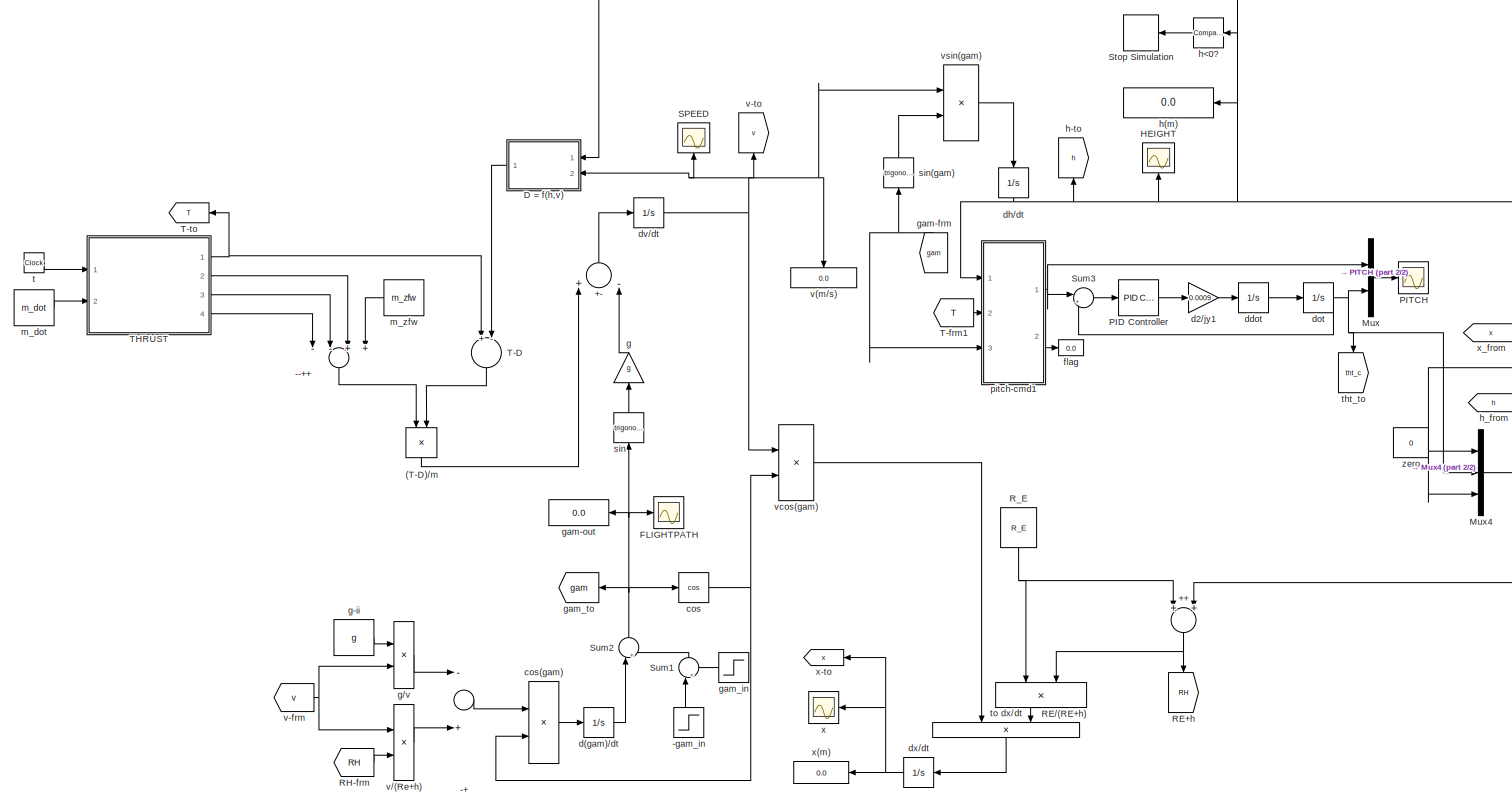
[diagram: root canvas - part 1/2, most of the canvas]
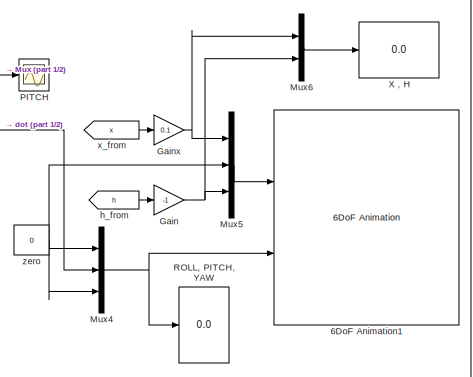
[diagram: root canvas - part 2/2, middle right region]
MODEL slx_6d2a2a8448fb
KIND model
BLOCK [Product] (T-D)//m
  InputSameDT = off
  Inputs = /*
  OutDataTypeStr = Inherit: Inherit via internal rule
  Ports = [2, 1]
  RndMeth = Floor
  SaturateOnIntegerOverflow = off
BLOCK [Sum] ++
  InputSameDT = off
  OutDataTypeStr = Inherit: Inherit via internal rule
  Ports = [2, 1]
  SaturateOnIntegerOverflow = off
BLOCK [Sum] +-
  InputSameDT = off
  Inputs = +-
  OutDataTypeStr = Inherit: Inherit via internal rule
  Ports = [2, 1]
  SaturateOnIntegerOverflow = off
BLOCK [Sum] -+
  InputSameDT = off
  Inputs = -+
  OutDataTypeStr = Inherit: Inherit via internal rule
  Ports = [2, 1]
  SaturateOnIntegerOverflow = off
BLOCK [Sum] --++
  InputSameDT = off
  Inputs = --++
  OutDataTypeStr = Inherit: Inherit via internal rule
  Ports = [4, 1]
  SaturateOnIntegerOverflow = off
BLOCK [Step] -gam_in
  After = -gam_in
  Before = -gam_in
  SampleTime = 0
  Time = t_turn+1
BLOCK [Reference] 6DoF Animation1  REF=aerolibanim/6DoF Animation
  Ports = [2]
  SourceBlock = aerolibanim/6DoF Animation
  SourceType = 6DoF_Animation
  u1 = [-100 10000 -10000 10000 0 10000]
  u2 = 0.3
  u3 = 2000
  u4 = [100000 100000 -100000]
  u5 = Fixed position
  u6 = [-20000 50000 -3500]
  u7 = 10
  u8 = on
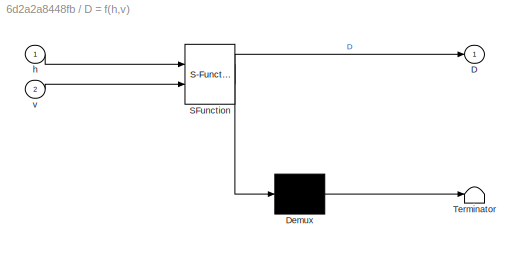
BLOCK [SubSystem] D = f(h,v)
  ErrorFcn = Stateflow.Translate.translate
  FunctionWithSeparateData = off
  MaskHideContents = off
  MinAlgLoopOccurrences = off
  Opaque = off
  PermitHierarchicalResolution = ExplicitOnly
  Ports = [2, 1]
  PropExecContextOutsideSubsystem = off
  RTWSystemCode = Auto
  RequestExecContextInheritance = off
  SFBlockType = MATLAB Function
  TreatAsAtomicUnit = on
BLOCK [Demux] D = f(h,v)/ Demux 
  Outputs = 1
  Ports = [1, 1]
BLOCK [S-Function] D = f(h,v)/ SFunction 
  EnableBusSupport = on
  FunctionName = sf_sfun
  PortCounts = [2 2]
  Ports = [2, 2]
  Tag = Stateflow S-Function flight_sim 3
BLOCK [Terminator] D = f(h,v)/ Terminator 
BLOCK [Outport] D = f(h,v)/D
  IconDisplay = Port number
BLOCK [Inport] D = f(h,v)/h
  IconDisplay = Port number
BLOCK [Inport] D = f(h,v)/v
  IconDisplay = Port number
  Port = 2
BLOCK [Scope] FLIGHTPATH
  DataFormat = StructureWithTime
  Floating = off
  MaxDataPoints = 10000
  NumInputPorts = 1
  Ports = [1]
  SampleTime = 0
  SaveName = ScopeData3
  ShowLegends = off
  YMax = 1.75
  YMin = -1.5
BLOCK [Gain] Gain
  Gain = -1
  OutDataTypeStr = Inherit: Inherit via internal rule
  ParamDataTypeStr = Inherit: Inherit via internal rule
  SaturateOnIntegerOverflow = off
BLOCK [Gain] Gainx
  Gain = 0.1
  OutDataTypeStr = Inherit: Inherit via internal rule
  ParamDataTypeStr = Inherit: Inherit via internal rule
  SaturateOnIntegerOverflow = off
BLOCK [Scope] HEIGHT
  DataFormat = StructureWithTime
  Floating = off
  MaxDataPoints = 10000
  NumInputPorts = 1
  Ports = [1]
  SampleTime = 0
  ShowLegends = off
  YMax = 32500
  YMin = 0
BLOCK [Mux] Mux
  DisplayOption = bar
  Inputs = 2
  Ports = [2, 1]
BLOCK [Mux] Mux4
  DisplayOption = bar
  Inputs = 3
  Ports = [3, 1]
BLOCK [Mux] Mux5
  DisplayOption = bar
  Inputs = 3
  Ports = [3, 1]
BLOCK [Mux] Mux6
  DisplayOption = bar
  Inputs = 2
  Ports = [2, 1]
BLOCK [Reference] PID Controller  REF=simulink/Continuous/PID Controller
  AntiWindupMode = none
  Controller = PID
  D = 200/5
  DOutDataTypeStr = Inherit: Inherit via internal rule
  DOutMax = []
  DOutMin = []
  DParamDataTypeStr = Inherit: Inherit via internal rule
  DParamMax = []
  DParamMin = []
  ExternalReset = none
  FilterContinuousStateAttributes = ''
  FilterMethod = Forward Euler
  FilterOutDataTypeStr = Inherit: Inherit via internal rule
  FilterOutMax = []
  FilterOutMin = []
  FilterRTWStateStorageClass = Auto
  FilterStateMustResolveToSignalObject = off
  Form = Parallel
  I = 0
  IOutDataTypeStr = Inherit: Inherit via internal rule
  IOutMax = []
  IOutMin = []
  IParamDataTypeStr = Inherit: Inherit via internal rule
  IParamMax = []
  IParamMin = []
  IgnoreLimit = off
  InitialConditionForFilter = 0
  InitialConditionForIntegrator = 0
  InitialConditionSource = internal
  IntegratorContinuousStateAttributes = ''
  IntegratorMethod = Forward Euler
  IntegratorOutDataTypeStr = Inherit: Inherit via internal rule
  IntegratorOutMax = []
  IntegratorOutMin = []
  IntegratorRTWStateStorageClass = Auto
  IntegratorStateMustResolveToSignalObject = off
  Kb = 1
  KbOutDataTypeStr = Inherit: Inherit via internal rule
  KbOutMax = []
  KbOutMin = []
  KbParamDataTypeStr = Inherit: Inherit via internal rule
  KbParamMax = []
  KbParamMin = []
  Kt = 1
  KtOutDataTypeStr = Inherit: Inherit via internal rule
  KtOutMax = []
  KtOutMin = []
  KtParamDataTypeStr = Inherit: Inherit via internal rule
  KtParamMax = []
  KtParamMin = []
  LimitOutput = off
  LinearizeAsGain = on
  LockScale = off
  LowerSaturationLimit = -inf
  N = 100
  NOutDataTypeStr = Inherit: Inherit via internal rule
  NOutMax = []
  NOutMin = []
  NParamDataTypeStr = Inherit: Inherit via internal rule
  NParamMax = []
  NParamMin = []
  P = 0
  POutDataTypeStr = Inherit: Inherit via internal rule
  POutMax = []
  POutMin = []
  PParamDataTypeStr = Inherit: Inherit via internal rule
  PParamMax = []
  PParamMin = []
  Ports = [1, 1]
  RndMeth = Floor
  SampleTime = 1
  SaturateOnIntegerOverflow = off
  SaturationOutDataTypeStr = Inherit: Same as input
  SaturationOutMax = []
  SaturationOutMin = []
  SourceBlock = simulink/Continuous/PID Controller
  SourceType = PID 1dof
  SumAccumDataTypeStr = Inherit: Inherit via internal rule
  SumDAccumDataTypeStr = Inherit: Inherit via internal rule
  SumDOutDataTypeStr = Inherit: Inherit via internal rule
  SumDOutMax = []
  SumDOutMin = []
  SumI1AccumDataTypeStr = Inherit: Inherit via internal rule
  SumI1OutDataTypeStr = Inherit: Inherit via internal rule
  SumI1OutMax = []
  SumI1OutMin = []
  SumI2AccumDataTypeStr = Inherit: Inherit via internal rule
  SumI2OutDataTypeStr = Inherit: Inherit via internal rule
  SumI2OutMax = []
  SumI2OutMin = []
  SumI3AccumDataTypeStr = Inherit: Inherit via internal rule
  SumI3OutDataTypeStr = Inherit: Inherit via internal rule
  SumI3OutMax = []
  SumI3OutMin = []
  SumOutDataTypeStr = Inherit: Inherit via internal rule
  SumOutMax = []
  SumOutMin = []
  TimeDomain = Continuous-time
  TrackingMode = off
  UpperSaturationLimit = inf
  ZeroCross = on
BLOCK [Scope] PITCH
  DataFormat = StructureWithTime
  Floating = off
  MaxDataPoints = 10000
  NumInputPorts = 1
  Ports = [1]
  SampleTime = 0
  SaveName = ScopeData4
  ShowLegends = off
  YMax = 3.25
  YMin = 0.25
BLOCK [Goto] RE+h
  GotoTag = RH
BLOCK [Product] RE//(RE+h)
  InputSameDT = off
  Inputs = */
  OutDataTypeStr = Inherit: Inherit via internal rule
  Ports = [2, 1]
  RndMeth = Floor
  SaturateOnIntegerOverflow = off
BLOCK [From] RH-frm
  GotoTag = RH
BLOCK [Display] ROLL, PITCH, YAW
  Decimation = 1
  Ports = [1]
BLOCK [Constant] R_E
  Value = R_E
BLOCK [Scope] SPEED
  DataFormat = StructureWithTime
  Floating = off
  MaxDataPoints = 10000
  NumInputPorts = 1
  Ports = [1]
  SampleTime = 0
  SaveName = ScopeData1
  ShowLegends = off
BLOCK [Stop] Stop Simulation
BLOCK [Sum] Sum1
  IconShape = round
  InputSameDT = off
  Inputs = |++
  OutDataTypeStr = Inherit: Inherit via internal rule
  Ports = [2, 1]
  SaturateOnIntegerOverflow = off
BLOCK [Sum] Sum2
  IconShape = round
  InputSameDT = off
  Inputs = |++
  OutDataTypeStr = Inherit: Inherit via internal rule
  Ports = [2, 1]
  SaturateOnIntegerOverflow = off
BLOCK [Sum] Sum3
  IconShape = round
  InputSameDT = off
  Inputs = |+-
  OutDataTypeStr = Inherit: Inherit via internal rule
  Ports = [2, 1]
  SaturateOnIntegerOverflow = off
BLOCK [Sum] T-D
  InputSameDT = off
  Inputs = +-
  OutDataTypeStr = Inherit: Inherit via internal rule
  Ports = [2, 1]
  SaturateOnIntegerOverflow = off
BLOCK [From] T-frm1
  GotoTag = T
BLOCK [Goto] T-to
  GotoTag = T
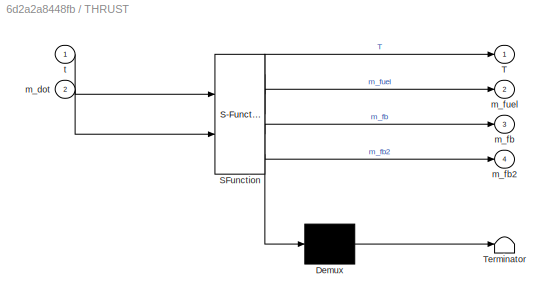
BLOCK [SubSystem] THRUST
  ErrorFcn = Stateflow.Translate.translate
  FunctionWithSeparateData = off
  MaskHideContents = off
  MinAlgLoopOccurrences = off
  Opaque = off
  PermitHierarchicalResolution = ExplicitOnly
  Ports = [2, 4]
  PropExecContextOutsideSubsystem = off
  RTWSystemCode = Auto
  RequestExecContextInheritance = off
  SFBlockType = MATLAB Function
  TreatAsAtomicUnit = on
BLOCK [Demux] THRUST/ Demux 
  Outputs = 1
  Ports = [1, 1]
BLOCK [S-Function] THRUST/ SFunction 
  EnableBusSupport = on
  FunctionName = sf_sfun
  PortCounts = [2 5]
  Ports = [2, 5]
  Tag = Stateflow S-Function flight_sim 2
BLOCK [Terminator] THRUST/ Terminator 
BLOCK [Outport] THRUST/T
  IconDisplay = Port number
BLOCK [Inport] THRUST/m_dot
  IconDisplay = Port number
  Port = 2
BLOCK [Outport] THRUST/m_fb
  IconDisplay = Port number
  Port = 3
BLOCK [Outport] THRUST/m_fb2
  IconDisplay = Port number
  Port = 4
BLOCK [Outport] THRUST/m_fuel
  IconDisplay = Port number
  Port = 2
BLOCK [Inport] THRUST/t
  IconDisplay = Port number
BLOCK [Display] X , H
  Decimation = 1
  Ports = [1]
BLOCK [Trigonometry] cos
  Operator = cos
  OutputSignalType = real
  Ports = [1, 1]
BLOCK [Product] cos(gam)
  InputSameDT = off
  OutDataTypeStr = Inherit: Inherit via internal rule
  Ports = [2, 1]
  RndMeth = Floor
  SaturateOnIntegerOverflow = off
BLOCK [Integrator] d(gam)//dt
  InitialCondition = gam_0
  Ports = [1, 1]
BLOCK [Gain] d2//jy1
  Gain = 0.0009
  OutDataTypeStr = Inherit: Inherit via internal rule
  ParamDataTypeStr = Inherit: Inherit via internal rule
  SaturateOnIntegerOverflow = off
BLOCK [Integrator] ddot
  Ports = [1, 1]
BLOCK [Integrator] dh//dt
  InitialCondition = h_0
  Ports = [1, 1]
BLOCK [Integrator] dot
  InitialCondition = pi/2
  Ports = [1, 1]
BLOCK [Integrator] dv//dt
  InitialCondition = v_0
  Ports = [1, 1]
BLOCK [Integrator] dx//dt
  InitialCondition = x_0
  Ports = [1, 1]
BLOCK [Display] flag
  Decimation = 1
  Ports = [1]
BLOCK [Gain] g
  Gain = g
  OutDataTypeStr = Inherit: Inherit via internal rule
  ParamDataTypeStr = Inherit: Inherit via internal rule
  SaturateOnIntegerOverflow = off
BLOCK [Constant] g-ii
  Value = g
BLOCK [Product] g//v
  InputSameDT = off
  Inputs = */
  OutDataTypeStr = Inherit: Inherit via internal rule
  Ports = [2, 1]
  RndMeth = Floor
  SaturateOnIntegerOverflow = off
BLOCK [From] gam-frm
  GotoTag = gam
BLOCK [Display] gam-out
  Decimation = 1
  Ports = [1]
BLOCK [Step] gam_in
  After = 0
  Before = gam_in
  SampleTime = 0
  Time = t_turn
BLOCK [Goto] gam_to
  GotoTag = gam
BLOCK [Display] h(m)
  Decimation = 1
  Ports = [1]
BLOCK [Goto] h-to
  GotoTag = h
BLOCK [Reference] h<0?  REF=simulink/Logic and Bit
Operations/Compare
To Zero
  OutDataTypeStr = boolean
  Ports = [1, 1]
  SourceBlock = simulink/Logic and Bit\nOperations/Compare\nTo Zero
  SourceType = Compare To Zero
  ZeroCross = on
  relop = <
BLOCK [From] h_from
  GotoTag = h
BLOCK [Constant] m_dot
  Value = m_dot
BLOCK [Constant] m_zfw
  Value = m_zfw
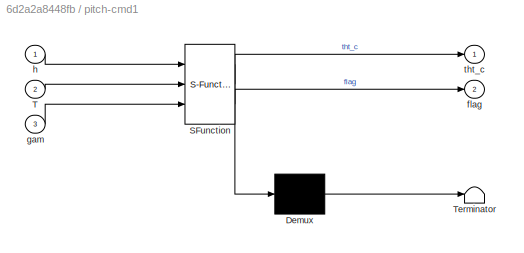
BLOCK [SubSystem] pitch-cmd1
  ErrorFcn = Stateflow.Translate.translate
  FunctionWithSeparateData = off
  MaskHideContents = off
  MinAlgLoopOccurrences = off
  Opaque = off
  PermitHierarchicalResolution = ExplicitOnly
  Ports = [3, 2]
  PropExecContextOutsideSubsystem = off
  RTWSystemCode = Auto
  RequestExecContextInheritance = off
  SFBlockType = MATLAB Function
  TreatAsAtomicUnit = on
BLOCK [Demux] pitch-cmd1/ Demux 
  Outputs = 1
  Ports = [1, 1]
BLOCK [S-Function] pitch-cmd1/ SFunction 
  EnableBusSupport = on
  FunctionName = sf_sfun
  PortCounts = [3 3]
  Ports = [3, 3]
  Tag = Stateflow S-Function flight_sim 4
BLOCK [Terminator] pitch-cmd1/ Terminator 
BLOCK [Inport] pitch-cmd1/T
  IconDisplay = Port number
  Port = 2
BLOCK [Outport] pitch-cmd1/flag
  IconDisplay = Port number
  Port = 2
BLOCK [Inport] pitch-cmd1/gam
  IconDisplay = Port number
  Port = 3
BLOCK [Inport] pitch-cmd1/h
  IconDisplay = Port number
BLOCK [Outport] pitch-cmd1/tht_c
  IconDisplay = Port number
BLOCK [Trigonometry] sin
  Ports = [1, 1]
BLOCK [Trigonometry] sin(gam)
  Ports = [1, 1]
BLOCK [Clock] t
BLOCK [Goto] tht_to
  GotoTag = tht_c
BLOCK [Product] to dx//dt
  InputSameDT = off
  OutDataTypeStr = Inherit: Inherit via internal rule
  Ports = [2, 1]
  RndMeth = Floor
  SaturateOnIntegerOverflow = off
BLOCK [Display] v(m//s)
  Decimation = 1
  Ports = [1]
BLOCK [From] v-frm
  GotoTag = v
BLOCK [Goto] v-to
  GotoTag = v
BLOCK [Product] v//(Re+h)
  InputSameDT = off
  Inputs = */
  OutDataTypeStr = Inherit: Inherit via internal rule
  Ports = [2, 1]
  RndMeth = Floor
  SaturateOnIntegerOverflow = off
BLOCK [Product] vcos(gam)
  InputSameDT = off
  OutDataTypeStr = Inherit: Inherit via internal rule
  Ports = [2, 1]
  RndMeth = Floor
  SaturateOnIntegerOverflow = off
BLOCK [Product] vsin(gam)
  InputSameDT = off
  OutDataTypeStr = Inherit: Inherit via internal rule
  Ports = [2, 1]
  RndMeth = Floor
  SaturateOnIntegerOverflow = off
BLOCK [Scope] x
  DataFormat = StructureWithTime
  Floating = off
  MaxDataPoints = 10000
  NumInputPorts = 1
  Ports = [1]
  SampleTime = 0
  SaveName = ScopeData2
  ShowLegends = off
  YMax = 85000
  YMin = 0
BLOCK [Display] x(m)
  Decimation = 1
  Ports = [1]
BLOCK [Goto] x-to
  GotoTag = x
BLOCK [From] x_from
  GotoTag = x
BLOCK [Constant] zero 
  Value = 0
LINE (T-D)//m:1 -> +-:1
NET ++:1 -> RE+h:1, RE//(RE+h):2
LINE +-:1 -> dv//dt:1
LINE -+:1 -> cos(gam):1
LINE --++:1 -> (T-D)//m:1
LINE -gam_in:1 -> Sum1:1
LINE D = f(h,v):1 -> T-D:2
NET Gain:1 -> Mux5:3, Mux6:2
NET Gainx:1 -> Mux5:1, Mux6:1
NET Mux4:1 -> 6DoF Animation1:2, ROLL, PITCH, YAW:1
LINE Mux5:1 -> 6DoF Animation1:1
LINE Mux6:1 -> X , H:1
LINE Mux:1 -> PITCH:1
LINE PID Controller:1 -> d2//jy1:1
LINE RE//(RE+h):1 -> to dx//dt:2
LINE RH-frm:1 -> v//(Re+h):2
NET R_E:1 -> ++:1, RE//(RE+h):1
LINE Sum1:1 -> Sum2:2
NET Sum2:1 -> FLIGHTPATH:1, cos:1, gam-out:1, gam_to:1, sin:1
LINE Sum3:1 -> PID Controller:1
LINE T-D:1 -> (T-D)//m:2
LINE T-frm1:1 -> pitch-cmd1:2
NET THRUST:1 -> T-D:1, T-to:1
LINE THRUST:2 -> --++:3
LINE THRUST:3 -> --++:2
LINE THRUST:4 -> --++:1
LINE cos(gam):1 -> d(gam)//dt:1
NET cos:1 -> cos(gam):2, vcos(gam):2
LINE d(gam)//dt:1 -> Sum2:1
LINE d2//jy1:1 -> ddot:1
LINE ddot:1 -> dot:1
NET dh//dt:1 -> ++:2, D = f(h,v):1, HEIGHT:1, h(m):1, h-to:1, h<0?:1, pitch-cmd1:1
NET dot:1 -> Mux4:2, Mux:2, Sum3:2, tht_to:1
NET dv//dt:1 -> D = f(h,v):2, SPEED:1, v(m//s):1, v-to:1, vcos(gam):1, vsin(gam):1
NET dx//dt:1 -> x(m):1, x-to:1, x:1
LINE g-ii:1 -> g//v:1
LINE g//v:1 -> -+:1
LINE g:1 -> +-:2
NET gam-frm:1 -> pitch-cmd1:3, sin(gam):1
LINE gam_in:1 -> Sum1:2
LINE h<0?:1 -> Stop Simulation:1
LINE h_from:1 -> Gain:1
LINE m_dot:1 -> THRUST:2
LINE m_zfw:1 -> --++:4
NET pitch-cmd1:1 -> Mux:1, Sum3:1
LINE pitch-cmd1:2 -> flag:1
LINE sin(gam):1 -> vsin(gam):2
LINE sin:1 -> g:1
LINE t:1 -> THRUST:1
LINE to dx//dt:1 -> dx//dt:1
NET v-frm:1 -> g//v:2, v//(Re+h):1
LINE v//(Re+h):1 -> -+:2
LINE vcos(gam):1 -> to dx//dt:1
LINE vsin(gam):1 -> dh//dt:1
LINE x_from:1 -> Gainx:1
NET zero :1 -> Mux4:1, Mux4:3, Mux5:2
note: NET lines group one-source signal fan-out (src -> all destinations, sorted); 1:1 wires keep LINE
